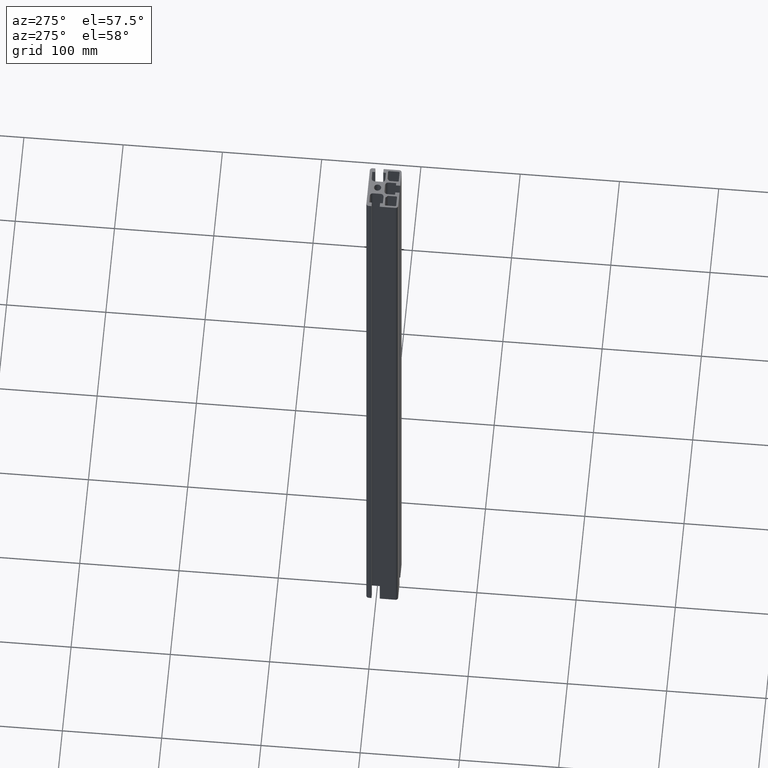
[diagram: clean part render]
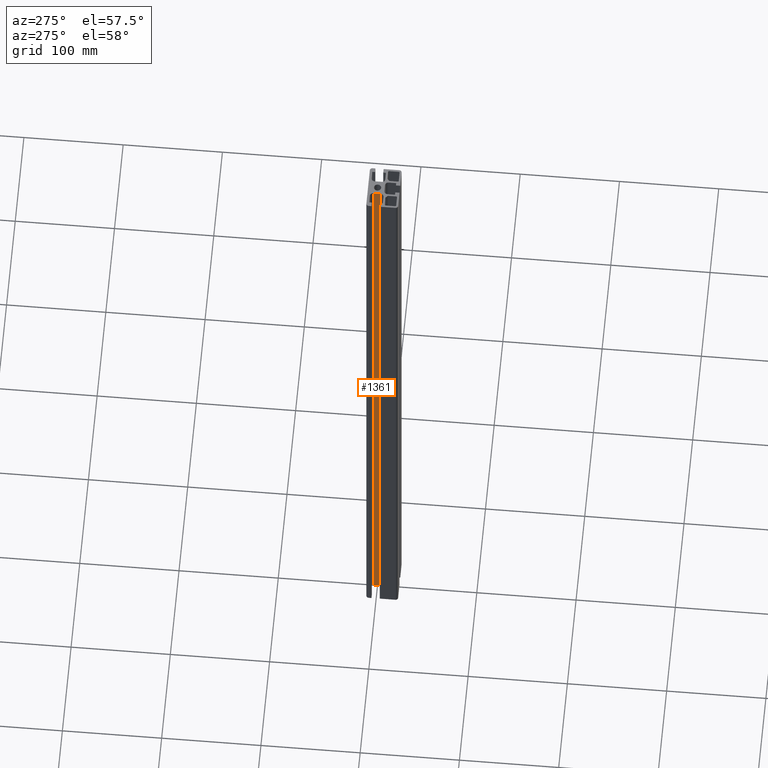
[diagram: same view with one face highlighted and labeled with its STEP entity id]
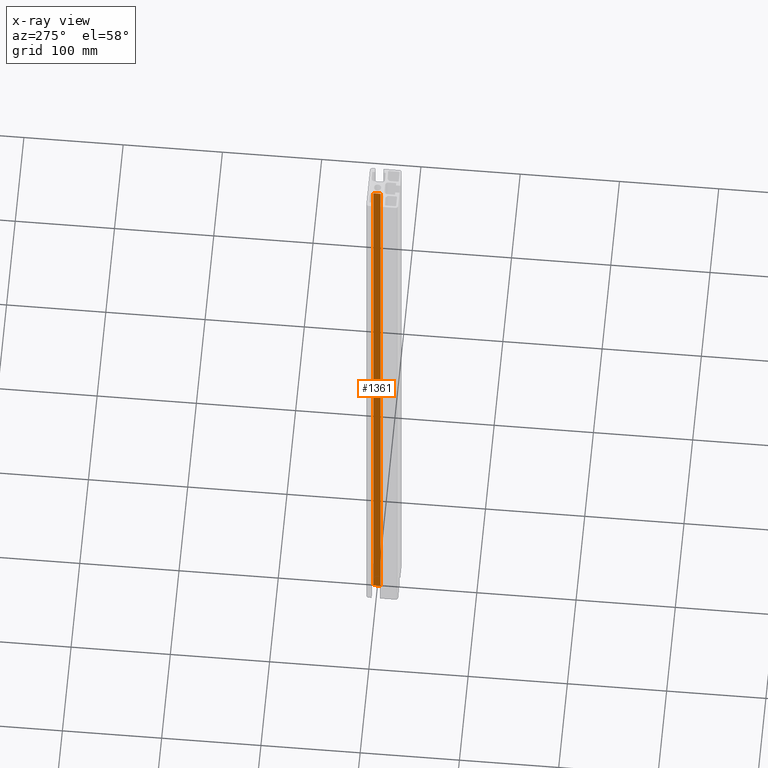
[diagram: x-ray of the same camera — body ghosted, the highlighted face saturated]
A machine part, auxiliary view. The second image highlights one B-rep face of the part: STEP entity #1361.
The next image is the same camera in x-ray: the body ghosted, the highlighted face saturated — about 0% of this face is hidden behind the body in this view.
In plain terms, the highlighted planar face has unit normal (1, -0, 0).
Its self-contained STEP definition (entity closure, byte-faithful):
#154=FACE_OUTER_BOUND('',#223,.T.);
#223=EDGE_LOOP('',(#1057,#1058,#1059,#1060));
#327=LINE('',#2152,#470);
#351=LINE('',#2220,#494);
#352=LINE('',#2223,#495);
#353=LINE('',#2224,#496);
#470=VECTOR('',#1745,10.);
#494=VECTOR('',#1809,10.);
#495=VECTOR('',#1814,10.);
#496=VECTOR('',#1815,10.);
#611=VERTEX_POINT('',#2146);
#613=VERTEX_POINT('',#2150);
#636=VERTEX_POINT('',#2217);
#637=VERTEX_POINT('',#2219);
#779=EDGE_CURVE('',#613,#611,#327,.T.);
#812=EDGE_CURVE('',#637,#636,#351,.T.);
#814=EDGE_CURVE('',#611,#636,#352,.T.);
#815=EDGE_CURVE('',#637,#613,#353,.T.);
#1057=ORIENTED_EDGE('',*,*,#814,.F.);
#1058=ORIENTED_EDGE('',*,*,#779,.F.);
#1059=ORIENTED_EDGE('',*,*,#815,.F.);
#1060=ORIENTED_EDGE('',*,*,#812,.T.);
#1300=PLANE('',#1495);
#1361=ADVANCED_FACE('',(#154),#1300,.F.);
#1495=AXIS2_PLACEMENT_3D('',#2222,#1812,#1813);
#1745=DIRECTION('',(0.,0.,1.));
#1809=DIRECTION('',(0.,0.,1.));
#1812=DIRECTION('center_axis',(1.,-1.73179788827678E-12,0.));
#1813=DIRECTION('ref_axis',(0.,0.,-1.));
#1814=DIRECTION('',(-1.73179788827678E-12,-1.,0.));
#1815=DIRECTION('',(1.73179788827678E-12,1.,0.));
#2146=CARTESIAN_POINT('',(-7.2,3.70000000000001,732.));
#2150=CARTESIAN_POINT('',(-7.2,3.70000000000001,0.));
#2152=CARTESIAN_POINT('',(-7.2,3.70000000000001,0.));
#2217=CARTESIAN_POINT('',(-7.20000000001282,-3.7,732.));
#2219=CARTESIAN_POINT('',(-7.20000000001282,-3.7,0.));
#2220=CARTESIAN_POINT('',(-7.20000000001282,-3.7,0.));
#2222=CARTESIAN_POINT('Origin',(-7.2,3.70000000000001,0.));
#2223=CARTESIAN_POINT('',(-7.20000000000883,-1.39999999999376,732.));
#2224=CARTESIAN_POINT('',(-7.20000000000883,-1.39999999999376,0.));